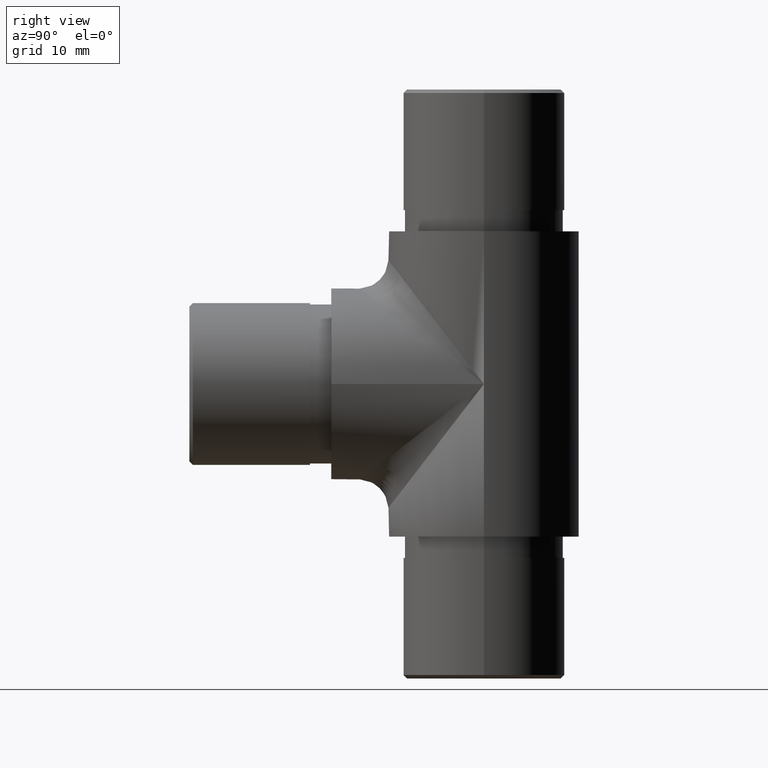
[diagram: clean part render]
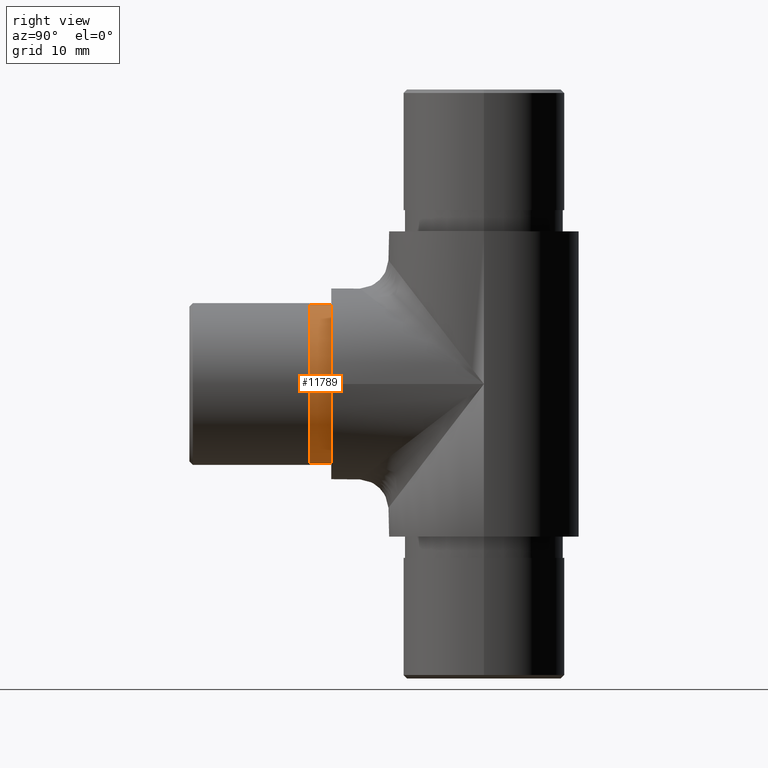
[diagram: same view with one face highlighted and labeled with its STEP entity id]
A machine part, right view. The second image highlights one B-rep face of the part: STEP entity #11789.
In plain terms, the highlighted cylindrical surface (bore or boss wall) has radius 11.2 mm, axis along (-0, 1, -0).
Its self-contained STEP definition (entity closure, byte-faithful):
#159 = CARTESIAN_POINT ( 'NONE',  ( 0.0000000000000000000, 20.00000000000000000, 0.0000000000000000000 ) ) ;
#866 = ORIENTED_EDGE ( 'NONE', *, *, #8868, .F. ) ;
#3469 = EDGE_LOOP ( 'NONE', ( #4252 ) ) ;
#3750 = AXIS2_PLACEMENT_3D ( 'NONE', #12903, #8888, #11891 ) ;
#4090 = DIRECTION ( 'NONE',  ( 0.0000000000000000000, 0.0000000000000000000, 1.000000000000000000 ) ) ;
#4252 = ORIENTED_EDGE ( 'NONE', *, *, #5027, .T. ) ;
#4285 = FACE_OUTER_BOUND ( 'NONE', #6779, .T. ) ;
#4594 = FACE_OUTER_BOUND ( 'NONE', #3469, .T. ) ;
#4882 = VERTEX_POINT ( 'NONE', #8499 ) ;
#4964 = AXIS2_PLACEMENT_3D ( 'NONE', #6258, #11167, #7164 ) ;
#5027 = EDGE_CURVE ( 'NONE', #4882, #4882, #8475, .T. ) ;
#5057 = CYLINDRICAL_SURFACE ( 'NONE', #4964, 11.20000000000000100 ) ;
#5065 = DIRECTION ( 'NONE',  ( -0.0000000000000000000, -1.000000000000000000, -0.0000000000000000000 ) ) ;
#5256 = CIRCLE ( 'NONE', #3750, 11.20000000000000100 ) ;
#6258 = CARTESIAN_POINT ( 'NONE',  ( 0.0000000000000000000, 17.00000000000000000, 0.0000000000000000000 ) ) ;
#6510 = CARTESIAN_POINT ( 'NONE',  ( 0.0000000000000000000, 17.00000000000000000, -11.20000000000000100 ) ) ;
#6779 = EDGE_LOOP ( 'NONE', ( #866 ) ) ;
#7164 = DIRECTION ( 'NONE',  ( 0.0000000000000000000, 0.0000000000000000000, 1.000000000000000000 ) ) ;
#7636 = AXIS2_PLACEMENT_3D ( 'NONE', #159, #5065, #4090 ) ;
#7675 = VERTEX_POINT ( 'NONE', #6510 ) ;
#8475 = CIRCLE ( 'NONE', #7636, 11.20000000000000100 ) ;
#8499 = CARTESIAN_POINT ( 'NONE',  ( 0.0000000000000000000, 20.00000000000000000, 11.20000000000000100 ) ) ;
#8868 = EDGE_CURVE ( 'NONE', #7675, #7675, #5256, .T. ) ;
#8888 = DIRECTION ( 'NONE',  ( 0.0000000000000000000, -1.000000000000000000, 0.0000000000000000000 ) ) ;
#11167 = DIRECTION ( 'NONE',  ( -0.0000000000000000000, 1.000000000000000000, -0.0000000000000000000 ) ) ;
#11789 = ADVANCED_FACE ( 'NONE', ( #4285, #4594 ), #5057, .T. ) ;
#11891 = DIRECTION ( 'NONE',  ( 0.0000000000000000000, 0.0000000000000000000, -1.000000000000000000 ) ) ;
#12903 = CARTESIAN_POINT ( 'NONE',  ( 0.0000000000000000000, 17.00000000000000000, 0.0000000000000000000 ) ) ;